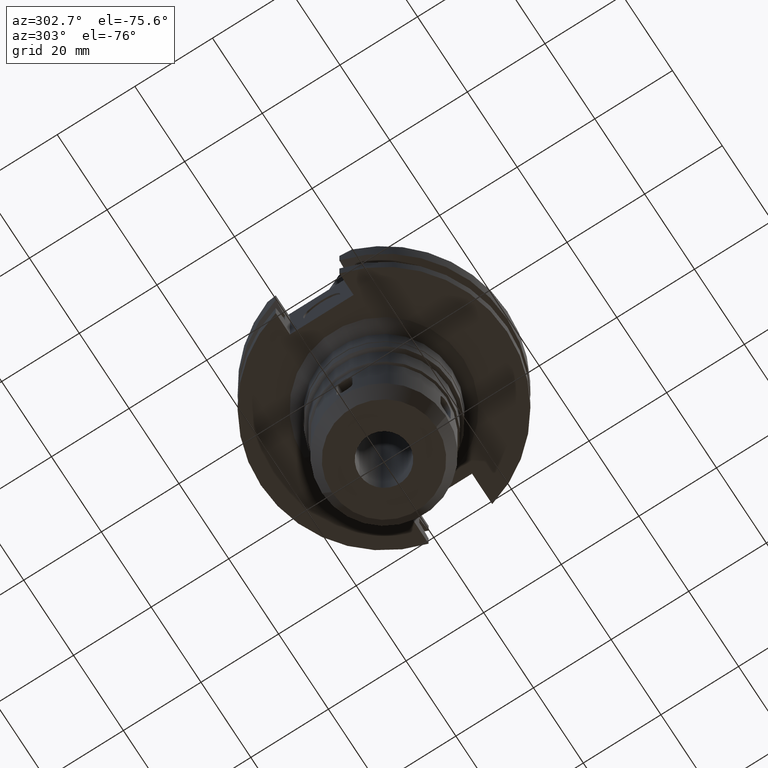
[diagram: clean part render]
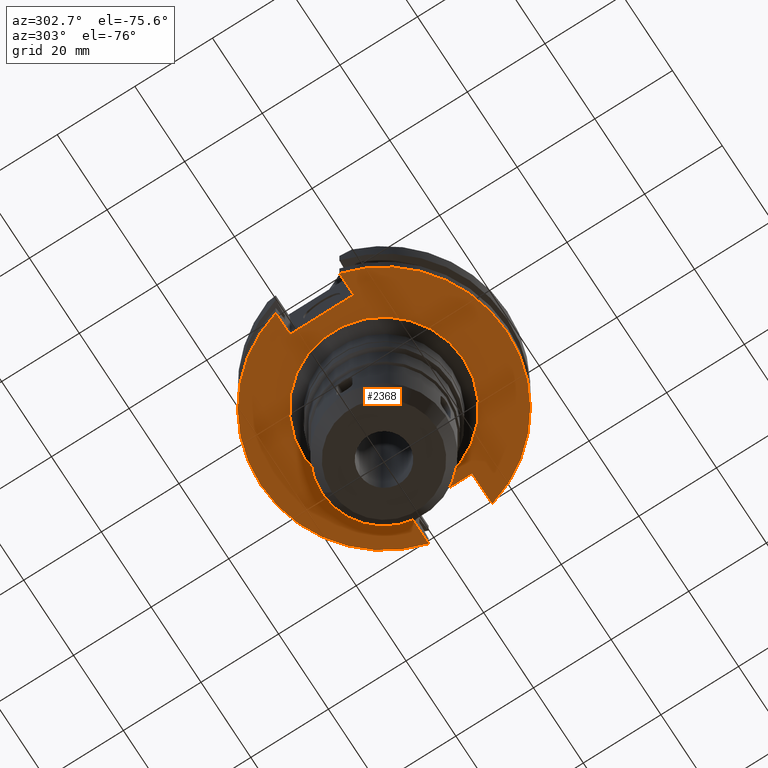
[diagram: same view with one face highlighted and labeled with its STEP entity id]
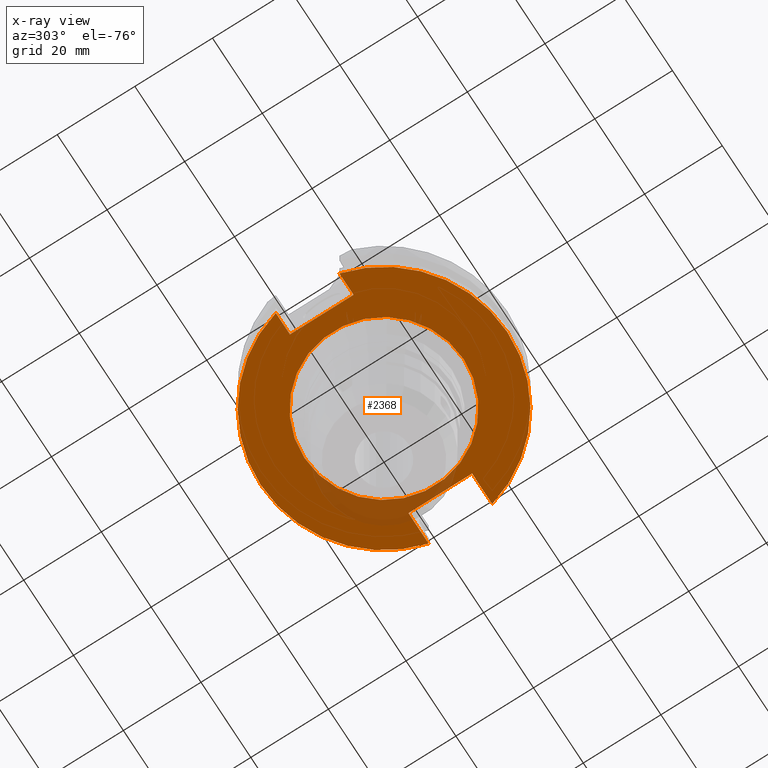
[diagram: x-ray of the same camera — body ghosted, the highlighted face saturated]
A machine part, auxiliary view. The second image highlights one B-rep face of the part: STEP entity #2368.
The next image is the same camera in x-ray: the body ghosted, the highlighted face saturated — about 8% of this face is hidden behind the body in this view.
In plain terms, the highlighted planar face has unit normal (0, 0, -1).
Its self-contained STEP definition (entity closure, byte-faithful):
#163=DIRECTION('',(0.E0,-1.E0,0.E0));
#164=VECTOR('',#163,1.638E1);
#165=CARTESIAN_POINT('',(2.257E1,8.19E0,-1.905E1));
#166=LINE('',#165,#164);
#198=DIRECTION('',(1.E0,0.E0,0.E0));
#199=VECTOR('',#198,8.105501625890E0);
#200=CARTESIAN_POINT('',(2.257E1,8.19E0,-1.905E1));
#201=LINE('',#200,#199);
#205=CARTESIAN_POINT('',(0.E0,2.141141847459E-14,-1.905E1));
#206=DIRECTION('',(0.E0,0.E0,1.E0));
#207=DIRECTION('',(9.661575315241E-1,2.579527559055E-1,0.E0));
#208=AXIS2_PLACEMENT_3D('',#205,#206,#207);
#213=CARTESIAN_POINT('',(0.E0,2.141141847459E-14,-1.905E1));
#214=DIRECTION('',(0.E0,0.E0,1.E0));
#215=DIRECTION('',(0.E0,1.E0,0.E0));
#216=AXIS2_PLACEMENT_3D('',#213,#214,#215);
#221=DIRECTION('',(0.E0,-1.E0,0.E0));
#222=VECTOR('',#221,1.638E1);
#223=CARTESIAN_POINT('',(-2.498E1,8.19E0,-1.905E1));
#224=LINE('',#223,#222);
#228=DIRECTION('',(-1.E0,0.E0,0.E0));
#229=VECTOR('',#228,5.695501625890E0);
#230=CARTESIAN_POINT('',(-2.498E1,-8.19E0,-1.905E1));
#231=LINE('',#230,#229);
#235=CARTESIAN_POINT('',(0.E0,2.141141847459E-14,-1.905E1));
#236=DIRECTION('',(0.E0,0.E0,1.E0));
#237=DIRECTION('',(-9.661575315241E-1,-2.579527559055E-1,0.E0));
#238=AXIS2_PLACEMENT_3D('',#235,#236,#237);
#243=CARTESIAN_POINT('',(0.E0,2.141141847459E-14,-1.905E1));
#244=DIRECTION('',(0.E0,0.E0,1.E0));
#245=DIRECTION('',(0.E0,-1.E0,0.E0));
#246=AXIS2_PLACEMENT_3D('',#243,#244,#245);
#251=CARTESIAN_POINT('',(0.E0,0.E0,-1.905E1));
#252=DIRECTION('',(0.E0,0.E0,-1.E0));
#253=DIRECTION('',(0.E0,-1.E0,0.E0));
#254=AXIS2_PLACEMENT_3D('',#251,#252,#253);
#259=CARTESIAN_POINT('',(0.E0,0.E0,-1.905E1));
#260=DIRECTION('',(0.E0,0.E0,-1.E0));
#261=DIRECTION('',(0.E0,1.E0,0.E0));
#262=AXIS2_PLACEMENT_3D('',#259,#260,#261);
#365=DIRECTION('',(-1.E0,0.E0,0.E0));
#366=VECTOR('',#365,5.695501625890E0);
#367=CARTESIAN_POINT('',(-2.498E1,8.19E0,-1.905E1));
#368=LINE('',#367,#366);
#605=DIRECTION('',(1.E0,0.E0,0.E0));
#606=VECTOR('',#605,8.105501625890E0);
#607=CARTESIAN_POINT('',(2.257E1,-8.19E0,-1.905E1));
#608=LINE('',#607,#606);
#2049=CARTESIAN_POINT('',(0.E0,2.05E1,-1.905E1));
#2050=VERTEX_POINT('',#2049);
#2051=CARTESIAN_POINT('',(0.E0,-2.05E1,-1.905E1));
#2052=VERTEX_POINT('',#2051);
#2053=CARTESIAN_POINT('',(2.257E1,8.19E0,-1.905E1));
#2054=CARTESIAN_POINT('',(2.257E1,-8.19E0,-1.905E1));
#2055=VERTEX_POINT('',#2053);
#2056=VERTEX_POINT('',#2054);
#2057=CARTESIAN_POINT('',(3.067550162589E1,8.19E0,-1.905E1));
#2058=VERTEX_POINT('',#2057);
#2059=CARTESIAN_POINT('',(-1.812171169876E-14,3.175E1,-1.905E1));
#2060=CARTESIAN_POINT('',(-3.067550162589E1,8.19E0,-1.905E1));
#2061=VERTEX_POINT('',#2059);
#2062=VERTEX_POINT('',#2060);
#2063=CARTESIAN_POINT('',(-2.498E1,8.19E0,-1.905E1));
#2064=VERTEX_POINT('',#2063);
#2065=CARTESIAN_POINT('',(-2.498E1,-8.19E0,-1.905E1));
#2066=VERTEX_POINT('',#2065);
#2067=CARTESIAN_POINT('',(-3.067550162589E1,-8.19E0,-1.905E1));
#2068=VERTEX_POINT('',#2067);
#2069=CARTESIAN_POINT('',(1.812171169876E-14,-3.175E1,-1.905E1));
#2070=CARTESIAN_POINT('',(3.067550162589E1,-8.19E0,-1.905E1));
#2071=VERTEX_POINT('',#2069);
#2072=VERTEX_POINT('',#2070);
#2336=CARTESIAN_POINT('',(0.E0,0.E0,-1.905E1));
#2337=DIRECTION('',(0.E0,0.E0,-1.E0));
#2338=DIRECTION('',(0.E0,-1.E0,0.E0));
#2339=AXIS2_PLACEMENT_3D('',#2336,#2337,#2338);
#2340=PLANE('',#2339);
#2341=ORIENTED_EDGE('',*,*,#2322,.F.);
#2343=ORIENTED_EDGE('',*,*,#2342,.T.);
#2345=ORIENTED_EDGE('',*,*,#2344,.T.);
#2347=ORIENTED_EDGE('',*,*,#2346,.T.);
#2349=ORIENTED_EDGE('',*,*,#2348,.F.);
#2351=ORIENTED_EDGE('',*,*,#2350,.T.);
#2353=ORIENTED_EDGE('',*,*,#2352,.T.);
#2355=ORIENTED_EDGE('',*,*,#2354,.T.);
#2357=ORIENTED_EDGE('',*,*,#2356,.T.);
#2359=ORIENTED_EDGE('',*,*,#2358,.F.);
#2360=EDGE_LOOP('',(#2341,#2343,#2345,#2347,#2349,#2351,#2353,#2355,#2357,
#2359));
#2361=FACE_OUTER_BOUND('',#2360,.F.);
#2363=ORIENTED_EDGE('',*,*,#2362,.T.);
#2365=ORIENTED_EDGE('',*,*,#2364,.T.);
#2366=EDGE_LOOP('',(#2363,#2365));
#2367=FACE_BOUND('',#2366,.F.);
#209=CIRCLE('',#208,3.175E1);
#217=CIRCLE('',#216,3.175E1);
#239=CIRCLE('',#238,3.175E1);
#247=CIRCLE('',#246,3.175E1);
#255=CIRCLE('',#254,2.05E1);
#263=CIRCLE('',#262,2.05E1);
#2322=EDGE_CURVE('',#2055,#2056,#166,.T.);
#2342=EDGE_CURVE('',#2055,#2058,#201,.T.);
#2344=EDGE_CURVE('',#2058,#2061,#209,.T.);
#2346=EDGE_CURVE('',#2061,#2062,#217,.T.);
#2348=EDGE_CURVE('',#2064,#2062,#368,.T.);
#2350=EDGE_CURVE('',#2064,#2066,#224,.T.);
#2352=EDGE_CURVE('',#2066,#2068,#231,.T.);
#2354=EDGE_CURVE('',#2068,#2071,#239,.T.);
#2356=EDGE_CURVE('',#2071,#2072,#247,.T.);
#2358=EDGE_CURVE('',#2056,#2072,#608,.T.);
#2362=EDGE_CURVE('',#2052,#2050,#255,.T.);
#2364=EDGE_CURVE('',#2050,#2052,#263,.T.);
#2368=ADVANCED_FACE('',(#2361,#2367),#2340,.T.);